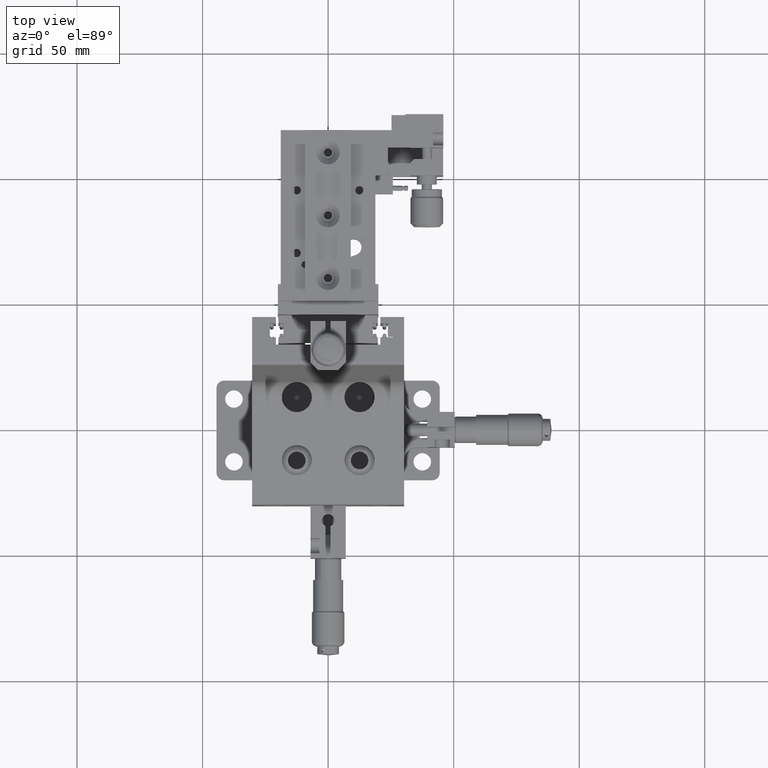
[diagram: clean part render]
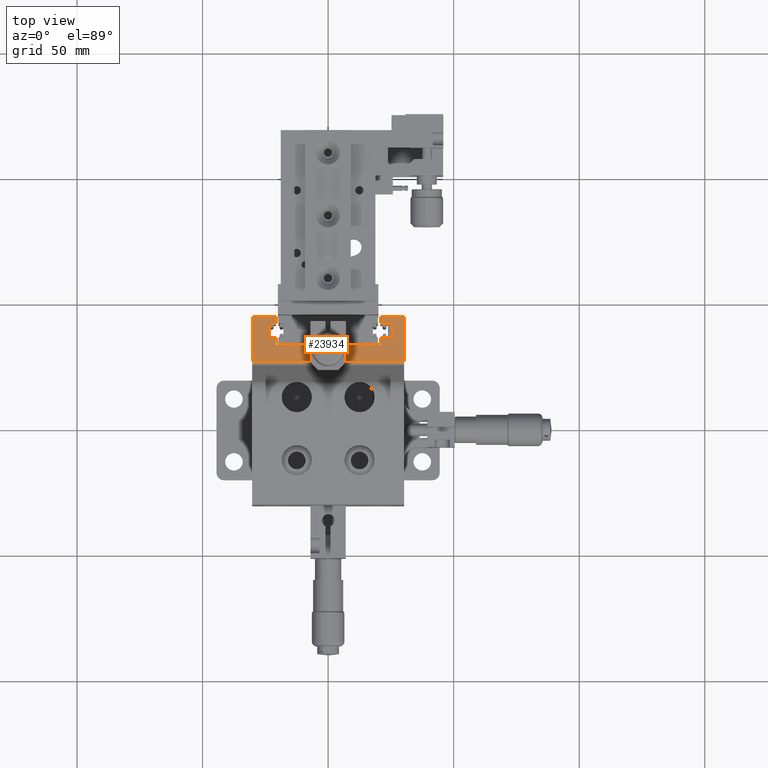
[diagram: same view with one face highlighted and labeled with its STEP entity id]
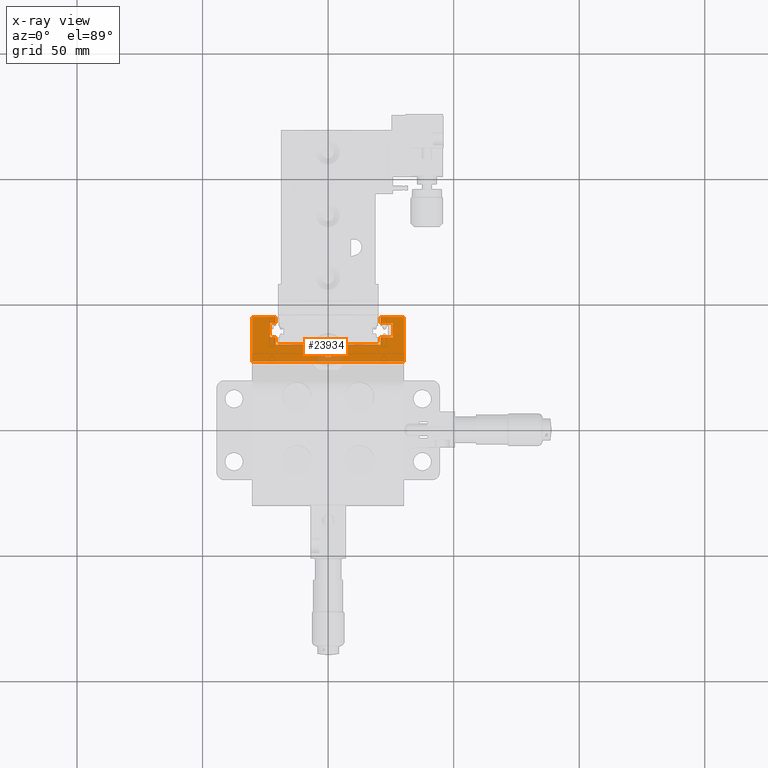
[diagram: x-ray of the same camera — body ghosted, the highlighted face saturated]
A machine part, top view. The second image highlights one B-rep face of the part: STEP entity #23934.
The next image is the same camera in x-ray: the body ghosted, the highlighted face saturated — about 12% of this face is hidden behind the body in this view.
In plain terms, the highlighted planar face has unit normal (-0, 0, -1).
Its self-contained STEP definition (entity closure, byte-faithful):
#7858 = LINE ( 'NONE', #7890, #7879 ) ;
#7878 = DIRECTION ( 'NONE',  ( 1.000000000000000000, 2.475649305861397000E-016, 1.137372100514515400E-031 ) ) ;
#7879 = VECTOR ( 'NONE', #7878, 1000.000000000000000 ) ;
#7890 = CARTESIAN_POINT ( 'NONE',  ( -20.80000000000000100, 32.69999999999993900, 86.29999999999817800 ) ) ;
#8143 = CIRCLE ( 'NONE', #8145, 2.000000000000000000 ) ;
#8145 = AXIS2_PLACEMENT_3D ( 'NONE', #8197, #8191, #8173 ) ;
#8156 = CARTESIAN_POINT ( 'NONE',  ( -2.000000000000007100, 29.69999999999993500, 86.29999999999817800 ) ) ;
#8173 = DIRECTION ( 'NONE',  ( 1.000000000000000000, 0.0000000000000000000, 0.0000000000000000000 ) ) ;
#8191 = DIRECTION ( 'NONE',  ( 0.0000000000000000000, -7.102025885541320600E-016, 1.000000000000000000 ) ) ;
#8194 = CARTESIAN_POINT ( 'NONE',  ( 1.999999999999993100, 29.69999999999993500, 86.29999999999817800 ) ) ;
#8197 = CARTESIAN_POINT ( 'NONE',  ( -6.938893903907228400E-015, 29.69999999999993500, 86.29999999999817800 ) ) ;
#8317 = CARTESIAN_POINT ( 'NONE',  ( -30.25000000000000400, 25.95864944676585800, 86.29999999999817800 ) ) ;
#8410 = CARTESIAN_POINT ( 'NONE',  ( 25.79999999999999700, 35.64999999999994200, 86.29999999999817800 ) ) ;
#8414 = CARTESIAN_POINT ( 'NONE',  ( 25.79999999999999700, 41.14999999999993500, 86.29999999999817800 ) ) ;
#8438 = DIRECTION ( 'NONE',  ( -1.224646799147353700E-016, 1.000000000000000000, 4.881579836291010500E-016 ) ) ;
#8439 = VECTOR ( 'NONE', #8438, 1000.000000000000000 ) ;
#8440 = CARTESIAN_POINT ( 'NONE',  ( 25.79999999999999700, 35.64999999999994200, 86.29999999999817800 ) ) ;
#8441 = LINE ( 'NONE', #8440, #8439 ) ;
#8455 = CARTESIAN_POINT ( 'NONE',  ( 30.24999999999999300, 25.95864944676586500, 86.29999999999817800 ) ) ;
#8459 = CARTESIAN_POINT ( 'NONE',  ( -20.80000000000000400, 41.14999999999993500, 86.29999999999817800 ) ) ;
#8472 = LINE ( 'NONE', #8526, #8525 ) ;
#8473 = DIRECTION ( 'NONE',  ( 1.000000000000000000, 1.224646799147353700E-016, 5.266852393220368800E-032 ) ) ;
#8474 = VECTOR ( 'NONE', #8473, 1000.000000000000000 ) ;
#8475 = CARTESIAN_POINT ( 'NONE',  ( 30.24999999999999300, 25.95864944676586500, 86.29999999999817800 ) ) ;
#8482 = LINE ( 'NONE', #8475, #8474 ) ;
#8490 = CARTESIAN_POINT ( 'NONE',  ( -20.80000000000000400, 43.69999999999993200, 86.29999999999817800 ) ) ;
#8506 = CARTESIAN_POINT ( 'NONE',  ( 20.79999999999999400, 32.69999999999994600, 86.29999999999817800 ) ) ;
#8524 = DIRECTION ( 'NONE',  ( 8.027483959840713100E-016, -1.000000000000000000, -4.881579836291010500E-016 ) ) ;
#8525 = VECTOR ( 'NONE', #8524, 1000.000000000000000 ) ;
#8526 = CARTESIAN_POINT ( 'NONE',  ( -20.80000000000000400, 43.69999999999993200, 86.29999999999817800 ) ) ;
#8532 = DIRECTION ( 'NONE',  ( -1.224646799147353700E-016, 1.000000000000000000, 4.881579836291010500E-016 ) ) ;
#8533 = VECTOR ( 'NONE', #8532, 1000.000000000000000 ) ;
#8534 = CARTESIAN_POINT ( 'NONE',  ( 20.79999999999999400, 35.64999999999994200, 86.29999999999817800 ) ) ;
#8535 = LINE ( 'NONE', #8534, #8533 ) ;
#8551 = DIRECTION ( 'NONE',  ( 1.000000000000000000, 4.694093751100964700E-016, 2.220323467695842400E-031 ) ) ;
#8552 = VECTOR ( 'NONE', #8551, 1000.000000000000000 ) ;
#8553 = CARTESIAN_POINT ( 'NONE',  ( 20.79999999999999400, 35.64999999999994200, 86.29999999999817800 ) ) ;
#8554 = LINE ( 'NONE', #8553, #8552 ) ;
#8557 = CARTESIAN_POINT ( 'NONE',  ( 20.79999999999999400, 35.64999999999994200, 86.29999999999817800 ) ) ;
#8567 = CARTESIAN_POINT ( 'NONE',  ( -20.80000000000000400, 35.64999999999993500, 86.29999999999817800 ) ) ;
#8579 = CARTESIAN_POINT ( 'NONE',  ( -23.20000000000000600, 35.64999999999993500, 86.29999999999817800 ) ) ;
#8626 = DIRECTION ( 'NONE',  ( 1.000000000000000000, 1.224646799147353700E-016, 5.266852393220368800E-032 ) ) ;
#8638 = CARTESIAN_POINT ( 'NONE',  ( -20.80000000000000400, 35.64999999999993500, 86.29999999999817800 ) ) ;
#8644 = VECTOR ( 'NONE', #8626, 1000.000000000000000 ) ;
#8647 = LINE ( 'NONE', #8638, #8644 ) ;
#8650 = CARTESIAN_POINT ( 'NONE',  ( -20.80000000000000100, 32.69999999999993900, 86.29999999999817800 ) ) ;
#8682 = VECTOR ( 'NONE', #8739, 1000.000000000000000 ) ;
#8683 = CARTESIAN_POINT ( 'NONE',  ( -20.80000000000000400, 35.64999999999993500, 86.29999999999817800 ) ) ;
#8684 = LINE ( 'NONE', #8683, #8682 ) ;
#8685 = DIRECTION ( 'NONE',  ( 1.224646799147353700E-016, -1.000000000000000000, -4.881579836291010500E-016 ) ) ;
#8686 = VECTOR ( 'NONE', #8685, 1000.000000000000000 ) ;
#8687 = CARTESIAN_POINT ( 'NONE',  ( -23.20000000000000600, 35.64999999999993500, 86.29999999999817800 ) ) ;
#8688 = LINE ( 'NONE', #8687, #8686 ) ;
#8701 = CARTESIAN_POINT ( 'NONE',  ( -23.20000000000000600, 41.14999999999992800, 86.29999999999817800 ) ) ;
#8723 = DIRECTION ( 'NONE',  ( -1.000000000000000000, -1.224646799147353700E-016, -5.266852393220368800E-032 ) ) ;
#8727 = VECTOR ( 'NONE', #8723, 1000.000000000000000 ) ;
#8728 = CARTESIAN_POINT ( 'NONE',  ( -20.80000000000000400, 41.14999999999993500, 86.29999999999817800 ) ) ;
#8729 = LINE ( 'NONE', #8728, #8727 ) ;
#8739 = DIRECTION ( 'NONE',  ( 7.105065361780600400E-016, -1.000000000000000000, -4.881579836291010500E-016 ) ) ;
#8812 = DIRECTION ( 'NONE',  ( -1.000000000000000000, -1.224646799147353700E-016, -5.266852393220368800E-032 ) ) ;
#8813 = VECTOR ( 'NONE', #8812, 1000.000000000000000 ) ;
#8814 = CARTESIAN_POINT ( 'NONE',  ( 30.24999999999999300, 43.69999999999993900, 86.29999999999817800 ) ) ;
#8820 = CARTESIAN_POINT ( 'NONE',  ( -30.25000000000000700, 43.69999999999993200, 86.29999999999817800 ) ) ;
#8828 = LINE ( 'NONE', #8814, #8813 ) ;
#8917 = DIRECTION ( 'NONE',  ( -1.000000000000000000, -2.959370275124159600E-016, -1.373504353508939500E-031 ) ) ;
#8918 = VECTOR ( 'NONE', #8917, 1000.000000000000000 ) ;
#8919 = CARTESIAN_POINT ( 'NONE',  ( 20.79999999999999400, 41.14999999999993500, 86.29999999999817800 ) ) ;
#8920 = LINE ( 'NONE', #8919, #8918 ) ;
#8950 = CARTESIAN_POINT ( 'NONE',  ( 20.80000000000000100, 43.69999999999994600, 86.29999999999817800 ) ) ;
#8952 = DIRECTION ( 'NONE',  ( 2.598670184362602800E-015, 1.000000000000000000, 4.881579836291010500E-016 ) ) ;
#8953 = VECTOR ( 'NONE', #8952, 1000.000000000000000 ) ;
#8956 = CARTESIAN_POINT ( 'NONE',  ( 20.79999999999999400, 41.14999999999993500, 86.29999999999817800 ) ) ;
#8962 = CARTESIAN_POINT ( 'NONE',  ( 20.80000000000000100, 43.69999999999994600, 86.29999999999817800 ) ) ;
#8963 = LINE ( 'NONE', #8962, #8953 ) ;
#8966 = DIRECTION ( 'NONE',  ( -1.000000000000000000, -1.224646799147353700E-016, -5.266852393220368800E-032 ) ) ;
#8967 = VECTOR ( 'NONE', #8966, 1000.000000000000000 ) ;
#8968 = CARTESIAN_POINT ( 'NONE',  ( 30.24999999999999300, 43.69999999999993900, 86.29999999999817800 ) ) ;
#8970 = DIRECTION ( 'NONE',  ( 1.000000000000000000, 0.0000000000000000000, 0.0000000000000000000 ) ) ;
#8971 = DIRECTION ( 'NONE',  ( 0.0000000000000000000, -7.102025885541320600E-016, 1.000000000000000000 ) ) ;
#8972 = CARTESIAN_POINT ( 'NONE',  ( -6.938893903907228400E-015, 29.69999999999993500, 86.29999999999817800 ) ) ;
#8981 = AXIS2_PLACEMENT_3D ( 'NONE', #8972, #8971, #8970 ) ;
#8983 = LINE ( 'NONE', #8968, #8967 ) ;
#8992 = CIRCLE ( 'NONE', #8981, 2.000000000000000000 ) ;
#8997 = FACE_BOUND ( 'NONE', #23872, .T. ) ;
#9019 = PLANE ( 'NONE',  #9040 ) ;
#9031 = CARTESIAN_POINT ( 'NONE',  ( 30.24999999999999300, 43.69999999999993900, 86.29999999999817800 ) ) ;
#9032 = DIRECTION ( 'NONE',  ( -3.430620874969459600E-032, 7.102025885541320600E-016, -1.000000000000000000 ) ) ;
#9033 = CARTESIAN_POINT ( 'NONE',  ( 30.24999999999999300, 43.69999999999993900, 86.29999999999817800 ) ) ;
#9034 = DIRECTION ( 'NONE',  ( 1.224646799147353700E-016, -1.000000000000000000, -4.881579836291010500E-016 ) ) ;
#9035 = VECTOR ( 'NONE', #9034, 1000.000000000000000 ) ;
#9038 = CARTESIAN_POINT ( 'NONE',  ( -30.25000000000000700, 43.69999999999993200, 86.29999999999817800 ) ) ;
#9039 = LINE ( 'NONE', #9038, #9035 ) ;
#9040 = AXIS2_PLACEMENT_3D ( 'NONE', #9033, #9032, #9091 ) ;
#9048 = FACE_OUTER_BOUND ( 'NONE', #23880, .T. ) ;
#9058 = DIRECTION ( 'NONE',  ( 1.224646799147353700E-016, -1.000000000000000000, -4.881579836291010500E-016 ) ) ;
#9059 = VECTOR ( 'NONE', #9058, 1000.000000000000000 ) ;
#9060 = CARTESIAN_POINT ( 'NONE',  ( 30.24999999999999300, 43.69999999999993900, 86.29999999999817800 ) ) ;
#9061 = LINE ( 'NONE', #9060, #9059 ) ;
#9091 = DIRECTION ( 'NONE',  ( -1.000000000000000000, -1.224646799147353700E-016, -5.266852393220368800E-032 ) ) ;
#23402 = VERTEX_POINT ( 'NONE', #8194 ) ;
#23403 = VERTEX_POINT ( 'NONE', #8156 ) ;
#23409 = EDGE_CURVE ( 'NONE', #23403, #23402, #8143, .T. ) ;
#23485 = VERTEX_POINT ( 'NONE', #8317 ) ;
#23528 = VERTEX_POINT ( 'NONE', #8410 ) ;
#23529 = VERTEX_POINT ( 'NONE', #8414 ) ;
#23541 = EDGE_CURVE ( 'NONE', #23528, #23529, #8441, .T. ) ;
#23542 = VERTEX_POINT ( 'NONE', #8459 ) ;
#23549 = VERTEX_POINT ( 'NONE', #8490 ) ;
#23552 = EDGE_CURVE ( 'NONE', #23485, #23563, #8482, .T. ) ;
#23558 = EDGE_CURVE ( 'NONE', #23549, #23542, #8472, .T. ) ;
#23563 = VERTEX_POINT ( 'NONE', #8455 ) ;
#23573 = VERTEX_POINT ( 'NONE', #8557 ) ;
#23576 = EDGE_CURVE ( 'NONE', #23573, #23528, #8554, .T. ) ;
#23589 = EDGE_CURVE ( 'NONE', #23593, #23573, #8535, .T. ) ;
#23593 = VERTEX_POINT ( 'NONE', #8506 ) ;
#23612 = VERTEX_POINT ( 'NONE', #8567 ) ;
#23627 = VERTEX_POINT ( 'NONE', #8579 ) ;
#23639 = EDGE_CURVE ( 'NONE', #23640, #23593, #7858, .T. ) ;
#23640 = VERTEX_POINT ( 'NONE', #8650 ) ;
#23649 = EDGE_CURVE ( 'NONE', #23627, #23612, #8647, .T. ) ;
#23687 = EDGE_CURVE ( 'NONE', #23689, #23627, #8688, .T. ) ;
#23689 = VERTEX_POINT ( 'NONE', #8701 ) ;
#23691 = EDGE_CURVE ( 'NONE', #23612, #23640, #8684, .T. ) ;
#23711 = EDGE_CURVE ( 'NONE', #23542, #23689, #8729, .T. ) ;
#23768 = EDGE_CURVE ( 'NONE', #23549, #23771, #8828, .T. ) ;
#23771 = VERTEX_POINT ( 'NONE', #8820 ) ;
#23824 = EDGE_CURVE ( 'NONE', #23529, #23850, #8920, .T. ) ;
#23843 = EDGE_CURVE ( 'NONE', #23850, #23851, #8963, .T. ) ;
#23850 = VERTEX_POINT ( 'NONE', #8956 ) ;
#23851 = VERTEX_POINT ( 'NONE', #8950 ) ;
#23858 = ORIENTED_EDGE ( 'NONE', *, *, #23589, .F. ) ;
#23859 = ORIENTED_EDGE ( 'NONE', *, *, #23711, .F. ) ;
#23860 = ORIENTED_EDGE ( 'NONE', *, *, #23409, .F. ) ;
#23866 = ORIENTED_EDGE ( 'NONE', *, *, #23576, .F. ) ;
#23868 = ORIENTED_EDGE ( 'NONE', *, *, #23878, .T. ) ;
#23872 = EDGE_LOOP ( 'NONE', ( #23936, #23860 ) ) ;
#23876 = EDGE_CURVE ( 'NONE', #23402, #23403, #8992, .T. ) ;
#23878 = EDGE_CURVE ( 'NONE', #23888, #23851, #8983, .T. ) ;
#23880 = EDGE_LOOP ( 'NONE', ( #23868, #23938, #23935, #23937, #23866, #23858, #23939, #23927, #23940, #23929, #23859, #23931, #23928, #23933, #23930, #23911 ) ) ;
#23888 = VERTEX_POINT ( 'NONE', #9031 ) ;
#23911 = ORIENTED_EDGE ( 'NONE', *, *, #23914, .F. ) ;
#23914 = EDGE_CURVE ( 'NONE', #23888, #23563, #9061, .T. ) ;
#23927 = ORIENTED_EDGE ( 'NONE', *, *, #23691, .F. ) ;
#23928 = ORIENTED_EDGE ( 'NONE', *, *, #23768, .T. ) ;
#23929 = ORIENTED_EDGE ( 'NONE', *, *, #23687, .F. ) ;
#23930 = ORIENTED_EDGE ( 'NONE', *, *, #23552, .T. ) ;
#23931 = ORIENTED_EDGE ( 'NONE', *, *, #23558, .F. ) ;
#23932 = EDGE_CURVE ( 'NONE', #23771, #23485, #9039, .T. ) ;
#23933 = ORIENTED_EDGE ( 'NONE', *, *, #23932, .T. ) ;
#23934 = ADVANCED_FACE ( 'NONE', ( #8997, #9048 ), #9019, .F. ) ;
#23935 = ORIENTED_EDGE ( 'NONE', *, *, #23824, .F. ) ;
#23936 = ORIENTED_EDGE ( 'NONE', *, *, #23876, .F. ) ;
#23937 = ORIENTED_EDGE ( 'NONE', *, *, #23541, .F. ) ;
#23938 = ORIENTED_EDGE ( 'NONE', *, *, #23843, .F. ) ;
#23939 = ORIENTED_EDGE ( 'NONE', *, *, #23639, .F. ) ;
#23940 = ORIENTED_EDGE ( 'NONE', *, *, #23649, .F. ) ;